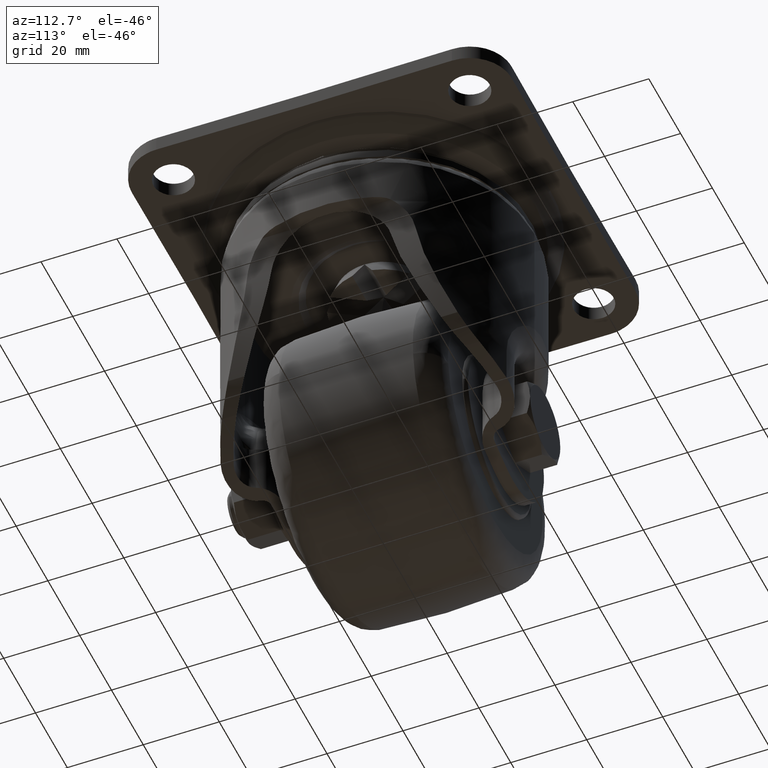
[diagram: clean part render]
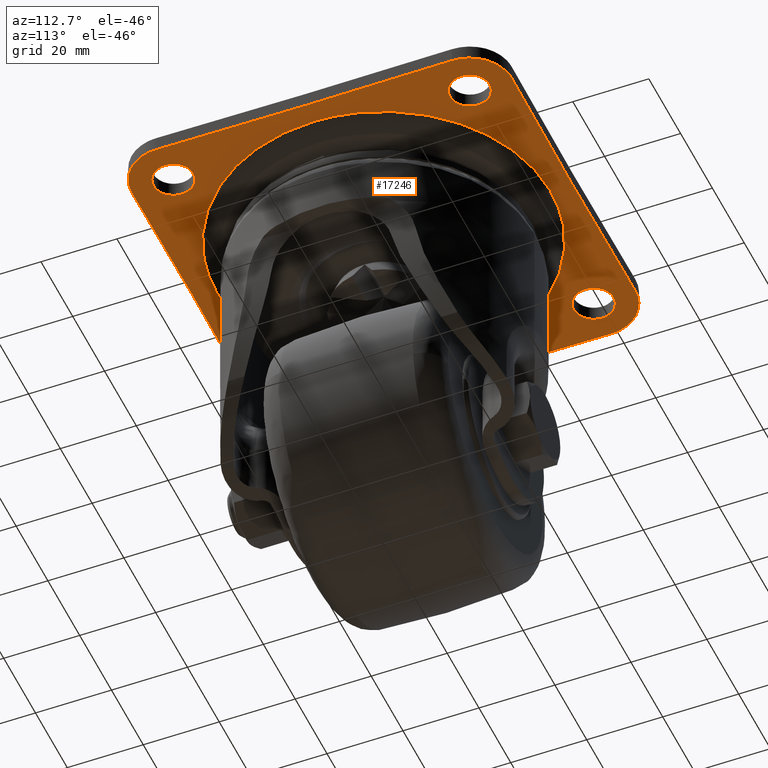
[diagram: same view with one face highlighted and labeled with its STEP entity id]
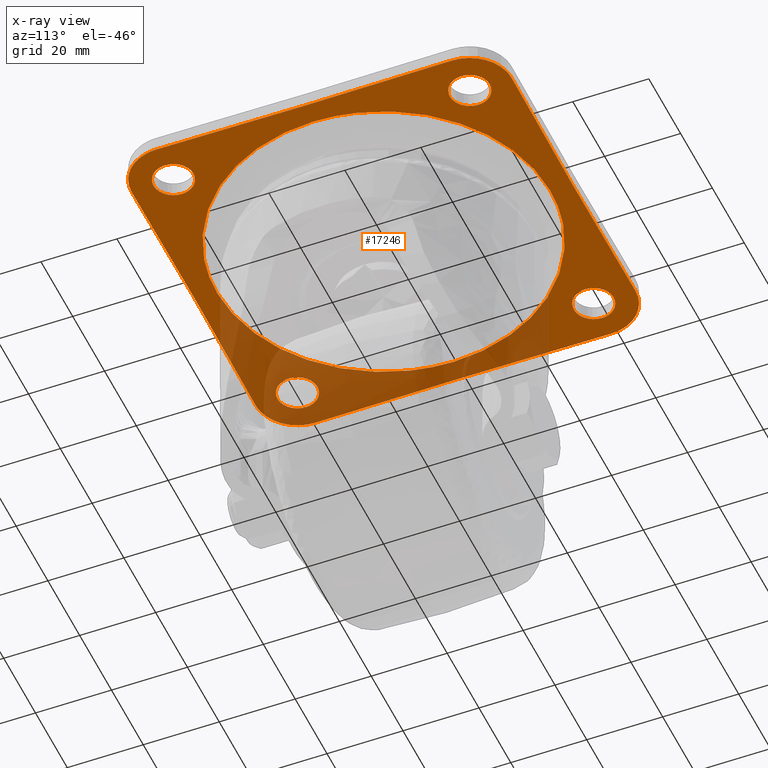
[diagram: x-ray of the same camera — body ghosted, the highlighted face saturated]
A machine part, auxiliary view. The second image highlights one B-rep face of the part: STEP entity #17246.
The next image is the same camera in x-ray: the body ghosted, the highlighted face saturated — about 30% of this face is hidden behind the body in this view.
In plain terms, the highlighted face is a freeform B-spline surface patch.
Its self-contained STEP definition (entity closure, byte-faithful):
#15383=CARTESIAN_POINT('',(-39.320512832876382,-44.240207691695332,-4.000005999999945));
#15384=VERTEX_POINT('',#15383);
#15385=CARTESIAN_POINT('',(-33.750008000000008,-39.0,-4.000005999999945));
#15386=VERTEX_POINT('',#15385);
#15387=CARTESIAN_POINT('',(-39.320512832876382,-44.240207691695332,-4.000005999999945));
#15388=CARTESIAN_POINT('',(-39.160410007477225,-44.250000000000000,-4.000005999999945));
#15389=CARTESIAN_POINT('',(-39.000008000000001,-44.250000000000000,-4.000005999999945));
#15390=CARTESIAN_POINT('',(-33.750008000000001,-44.250000000000007,-4.000005999999945));
#15391=CARTESIAN_POINT('',(-33.750008000000008,-39.0,-4.000005999999945));
#15399=(BOUNDED_CURVE()B_SPLINE_CURVE(2,(#15387,#15388,#15389,#15390,#15391),.UNSPECIFIED.,.F.,.U.)B_SPLINE_CURVE_WITH_KNOTS((3,2,3),(0.239332962231485,0.250000000000000,0.500000000000000),.UNSPECIFIED.)CURVE()GEOMETRIC_REPRESENTATION_ITEM()RATIONAL_B_SPLINE_CURVE((0.976072041650734,0.987502787891100,1.0,0.707106781186547,1.0))REPRESENTATION_ITEM(''));
#15400=EDGE_CURVE('',#15384,#15386,#15399,.T.);
#15441=CARTESIAN_POINT('',(-38.679503167123627,-33.759792308304668,-4.000005999999945));
#15442=VERTEX_POINT('',#15441);
#15448=CARTESIAN_POINT('',(-33.750008000000008,-39.0,-4.000005999999945));
#15449=CARTESIAN_POINT('',(-33.750008000000015,-34.061293149045717,-4.000005999999944));
#15450=CARTESIAN_POINT('',(-38.679503167123634,-33.759792308304675,-4.000005999999945));
#15458=(BOUNDED_CURVE()B_SPLINE_CURVE(2,(#15448,#15449,#15450),.UNSPECIFIED.,.F.,.U.)B_SPLINE_CURVE_WITH_KNOTS((3,3),(0.500000000000000,0.739332962231485),.UNSPECIFIED.)CURVE()GEOMETRIC_REPRESENTATION_ITEM()RATIONAL_B_SPLINE_CURVE((1.0,0.719603993295448,0.976072041650734))REPRESENTATION_ITEM(''));
#15459=EDGE_CURVE('',#15386,#15442,#15458,.T.);
#15482=CARTESIAN_POINT('',(-44.250008000000001,-39.0,-4.000005999999945));
#15483=VERTEX_POINT('',#15482);
#15484=CARTESIAN_POINT('',(-44.250008000000001,-39.0,-4.000005999999945));
#15485=CARTESIAN_POINT('',(-44.250008000000008,-43.938706850954283,-4.000005999999945));
#15486=CARTESIAN_POINT('',(-39.320512832876382,-44.240207691695332,-4.000005999999945));
#15494=(BOUNDED_CURVE()B_SPLINE_CURVE(2,(#15484,#15485,#15486),.UNSPECIFIED.,.F.,.U.)B_SPLINE_CURVE_WITH_KNOTS((3,3),(0.0,0.239332962231485),.UNSPECIFIED.)CURVE()GEOMETRIC_REPRESENTATION_ITEM()RATIONAL_B_SPLINE_CURVE((1.0,0.719603993295447,0.976072041650734))REPRESENTATION_ITEM(''));
#15495=EDGE_CURVE('',#15483,#15384,#15494,.T.);
#15497=CARTESIAN_POINT('',(-38.679503167123620,-33.759792308304682,-4.000005999999944));
#15498=CARTESIAN_POINT('',(-38.839605992522770,-33.750000000000000,-4.000005999999945));
#15499=CARTESIAN_POINT('',(-39.000008000000001,-33.750000000000000,-4.000005999999945));
#15500=CARTESIAN_POINT('',(-44.250007999999994,-33.750000000000007,-4.000005999999945));
#15501=CARTESIAN_POINT('',(-44.250008000000001,-39.0,-4.000005999999945));
#15509=(BOUNDED_CURVE()B_SPLINE_CURVE(2,(#15497,#15498,#15499,#15500,#15501),.UNSPECIFIED.,.F.,.U.)B_SPLINE_CURVE_WITH_KNOTS((3,2,3),(0.739332962231485,0.750000000000000,1.0),.UNSPECIFIED.)CURVE()GEOMETRIC_REPRESENTATION_ITEM()RATIONAL_B_SPLINE_CURVE((0.976072041650734,0.987502787891100,1.0,0.707106781186547,1.0))REPRESENTATION_ITEM(''));
#15510=EDGE_CURVE('',#15442,#15483,#15509,.T.);
#15565=CARTESIAN_POINT('',(-39.320512832876382,33.759792308304668,-4.000005999999945));
#15566=VERTEX_POINT('',#15565);
#15567=CARTESIAN_POINT('',(-33.750008000000008,39.0,-4.000005999999945));
#15568=VERTEX_POINT('',#15567);
#15569=CARTESIAN_POINT('',(-39.320512832876368,33.759792308304675,-4.000005999999944));
#15570=CARTESIAN_POINT('',(-39.160410007477225,33.750000000000000,-4.000005999999944));
#15571=CARTESIAN_POINT('',(-39.000008000000001,33.750000000000000,-4.000005999999945));
#15572=CARTESIAN_POINT('',(-33.750008000000001,33.750000000000007,-4.000005999999945));
#15573=CARTESIAN_POINT('',(-33.750008000000008,39.0,-4.000005999999945));
#15581=(BOUNDED_CURVE()B_SPLINE_CURVE(2,(#15569,#15570,#15571,#15572,#15573),.UNSPECIFIED.,.F.,.U.)B_SPLINE_CURVE_WITH_KNOTS((3,2,3),(0.239332962231485,0.250000000000000,0.500000000000000),.UNSPECIFIED.)CURVE()GEOMETRIC_REPRESENTATION_ITEM()RATIONAL_B_SPLINE_CURVE((0.976072041650734,0.987502787891100,1.0,0.707106781186547,1.0))REPRESENTATION_ITEM(''));
#15582=EDGE_CURVE('',#15566,#15568,#15581,.T.);
#15623=CARTESIAN_POINT('',(-38.679503167123627,44.240207691695332,-4.000005999999945));
#15624=VERTEX_POINT('',#15623);
#15630=CARTESIAN_POINT('',(-33.750008000000008,39.0,-4.000005999999945));
#15631=CARTESIAN_POINT('',(-33.750008000000015,43.938706850954276,-4.000005999999944));
#15632=CARTESIAN_POINT('',(-38.679503167123634,44.240207691695332,-4.000005999999945));
#15640=(BOUNDED_CURVE()B_SPLINE_CURVE(2,(#15630,#15631,#15632),.UNSPECIFIED.,.F.,.U.)B_SPLINE_CURVE_WITH_KNOTS((3,3),(0.500000000000000,0.739332962231485),.UNSPECIFIED.)CURVE()GEOMETRIC_REPRESENTATION_ITEM()RATIONAL_B_SPLINE_CURVE((1.0,0.719603993295448,0.976072041650734))REPRESENTATION_ITEM(''));
#15641=EDGE_CURVE('',#15568,#15624,#15640,.T.);
#15664=CARTESIAN_POINT('',(-44.250008000000001,39.0,-4.000005999999945));
#15665=VERTEX_POINT('',#15664);
#15666=CARTESIAN_POINT('',(-44.250008000000001,39.0,-4.000005999999945));
#15667=CARTESIAN_POINT('',(-44.250008000000008,34.061293149045710,-4.000005999999945));
#15668=CARTESIAN_POINT('',(-39.320512832876382,33.759792308304682,-4.000005999999945));
#15676=(BOUNDED_CURVE()B_SPLINE_CURVE(2,(#15666,#15667,#15668),.UNSPECIFIED.,.F.,.U.)B_SPLINE_CURVE_WITH_KNOTS((3,3),(0.0,0.239332962231485),.UNSPECIFIED.)CURVE()GEOMETRIC_REPRESENTATION_ITEM()RATIONAL_B_SPLINE_CURVE((1.0,0.719603993295447,0.976072041650734))REPRESENTATION_ITEM(''));
#15677=EDGE_CURVE('',#15665,#15566,#15676,.T.);
#15679=CARTESIAN_POINT('',(-38.679503167123620,44.240207691695332,-4.000005999999944));
#15680=CARTESIAN_POINT('',(-38.839605992522770,44.250000000000000,-4.000005999999945));
#15681=CARTESIAN_POINT('',(-39.000008000000001,44.250000000000000,-4.000005999999945));
#15682=CARTESIAN_POINT('',(-44.250007999999994,44.250000000000007,-4.000005999999945));
#15683=CARTESIAN_POINT('',(-44.250008000000001,39.0,-4.000005999999945));
#15691=(BOUNDED_CURVE()B_SPLINE_CURVE(2,(#15679,#15680,#15681,#15682,#15683),.UNSPECIFIED.,.F.,.U.)B_SPLINE_CURVE_WITH_KNOTS((3,2,3),(0.739332962231485,0.750000000000000,1.0),.UNSPECIFIED.)CURVE()GEOMETRIC_REPRESENTATION_ITEM()RATIONAL_B_SPLINE_CURVE((0.976072041650734,0.987502787891100,1.0,0.707106781186547,1.0))REPRESENTATION_ITEM(''));
#15692=EDGE_CURVE('',#15624,#15665,#15691,.T.);
#15747=CARTESIAN_POINT('',(38.679503167123627,33.759792308304668,-4.000005999999945));
#15748=VERTEX_POINT('',#15747);
#15749=CARTESIAN_POINT('',(44.250008000000001,39.0,-4.000005999999945));
#15750=VERTEX_POINT('',#15749);
#15751=CARTESIAN_POINT('',(38.679503167123627,33.759792308304682,-4.000005999999944));
#15752=CARTESIAN_POINT('',(38.839605992522770,33.750000000000000,-4.000005999999944));
#15753=CARTESIAN_POINT('',(39.000008000000001,33.750000000000000,-4.000005999999945));
#15754=CARTESIAN_POINT('',(44.250007999999994,33.750000000000007,-4.000005999999945));
#15755=CARTESIAN_POINT('',(44.250008000000001,39.0,-4.000005999999945));
#15763=(BOUNDED_CURVE()B_SPLINE_CURVE(2,(#15751,#15752,#15753,#15754,#15755),.UNSPECIFIED.,.F.,.U.)B_SPLINE_CURVE_WITH_KNOTS((3,2,3),(0.239332962231485,0.250000000000000,0.500000000000000),.UNSPECIFIED.)CURVE()GEOMETRIC_REPRESENTATION_ITEM()RATIONAL_B_SPLINE_CURVE((0.976072041650734,0.987502787891100,1.0,0.707106781186547,1.0))REPRESENTATION_ITEM(''));
#15764=EDGE_CURVE('',#15748,#15750,#15763,.T.);
#15805=CARTESIAN_POINT('',(39.320512832876382,44.240207691695332,-4.000005999999945));
#15806=VERTEX_POINT('',#15805);
#15812=CARTESIAN_POINT('',(44.250008000000001,39.0,-4.000005999999945));
#15813=CARTESIAN_POINT('',(44.250008000000001,43.938706850954269,-4.000005999999945));
#15814=CARTESIAN_POINT('',(39.320512832876375,44.240207691695332,-4.000005999999944));
#15822=(BOUNDED_CURVE()B_SPLINE_CURVE(2,(#15812,#15813,#15814),.UNSPECIFIED.,.F.,.U.)B_SPLINE_CURVE_WITH_KNOTS((3,3),(0.500000000000000,0.739332962231485),.UNSPECIFIED.)CURVE()GEOMETRIC_REPRESENTATION_ITEM()RATIONAL_B_SPLINE_CURVE((1.0,0.719603993295448,0.976072041650734))REPRESENTATION_ITEM(''));
#15823=EDGE_CURVE('',#15750,#15806,#15822,.T.);
#15846=CARTESIAN_POINT('',(33.750008000000008,39.0,-4.000005999999945));
#15847=VERTEX_POINT('',#15846);
#15848=CARTESIAN_POINT('',(33.750008000000008,39.0,-4.000005999999945));
#15849=CARTESIAN_POINT('',(33.750008000000001,34.061293149045724,-4.000005999999944));
#15850=CARTESIAN_POINT('',(38.679503167123634,33.759792308304675,-4.000005999999945));
#15858=(BOUNDED_CURVE()B_SPLINE_CURVE(2,(#15848,#15849,#15850),.UNSPECIFIED.,.F.,.U.)B_SPLINE_CURVE_WITH_KNOTS((3,3),(0.0,0.239332962231485),.UNSPECIFIED.)CURVE()GEOMETRIC_REPRESENTATION_ITEM()RATIONAL_B_SPLINE_CURVE((1.0,0.719603993295448,0.976072041650734))REPRESENTATION_ITEM(''));
#15859=EDGE_CURVE('',#15847,#15748,#15858,.T.);
#15861=CARTESIAN_POINT('',(39.320512832876368,44.240207691695318,-4.000005999999944));
#15862=CARTESIAN_POINT('',(39.160410007477218,44.249999999999993,-4.000005999999944));
#15863=CARTESIAN_POINT('',(39.000008000000001,44.250000000000000,-4.000005999999945));
#15864=CARTESIAN_POINT('',(33.750008000000001,44.250000000000007,-4.000005999999945));
#15865=CARTESIAN_POINT('',(33.750008000000008,39.0,-4.000005999999945));
#15873=(BOUNDED_CURVE()B_SPLINE_CURVE(2,(#15861,#15862,#15863,#15864,#15865),.UNSPECIFIED.,.F.,.U.)B_SPLINE_CURVE_WITH_KNOTS((3,2,3),(0.739332962231485,0.750000000000000,1.0),.UNSPECIFIED.)CURVE()GEOMETRIC_REPRESENTATION_ITEM()RATIONAL_B_SPLINE_CURVE((0.976072041650735,0.987502787891100,1.0,0.707106781186547,1.0))REPRESENTATION_ITEM(''));
#15874=EDGE_CURVE('',#15806,#15847,#15873,.T.);
#15929=CARTESIAN_POINT('',(38.679503167123627,-44.240207691695332,-4.000005999999945));
#15930=VERTEX_POINT('',#15929);
#15931=CARTESIAN_POINT('',(44.250008000000001,-39.0,-4.000005999999945));
#15932=VERTEX_POINT('',#15931);
#15933=CARTESIAN_POINT('',(38.679503167123634,-44.240207691695332,-4.000005999999945));
#15934=CARTESIAN_POINT('',(38.839605992522777,-44.250000000000000,-4.000005999999945));
#15935=CARTESIAN_POINT('',(39.000008000000001,-44.250000000000000,-4.000005999999945));
#15936=CARTESIAN_POINT('',(44.250007999999994,-44.250000000000007,-4.000005999999945));
#15937=CARTESIAN_POINT('',(44.250008000000001,-39.0,-4.000005999999945));
#15945=(BOUNDED_CURVE()B_SPLINE_CURVE(2,(#15933,#15934,#15935,#15936,#15937),.UNSPECIFIED.,.F.,.U.)B_SPLINE_CURVE_WITH_KNOTS((3,2,3),(0.239332962231485,0.250000000000000,0.500000000000000),.UNSPECIFIED.)CURVE()GEOMETRIC_REPRESENTATION_ITEM()RATIONAL_B_SPLINE_CURVE((0.976072041650734,0.987502787891100,1.0,0.707106781186547,1.0))REPRESENTATION_ITEM(''));
#15946=EDGE_CURVE('',#15930,#15932,#15945,.T.);
#15987=CARTESIAN_POINT('',(39.320512832876382,-33.759792308304668,-4.000005999999945));
#15988=VERTEX_POINT('',#15987);
#15994=CARTESIAN_POINT('',(44.250008000000001,-39.0,-4.000005999999945));
#15995=CARTESIAN_POINT('',(44.250008000000001,-34.061293149045717,-4.000005999999945));
#15996=CARTESIAN_POINT('',(39.320512832876375,-33.759792308304675,-4.000005999999944));
#16004=(BOUNDED_CURVE()B_SPLINE_CURVE(2,(#15994,#15995,#15996),.UNSPECIFIED.,.F.,.U.)B_SPLINE_CURVE_WITH_KNOTS((3,3),(0.500000000000000,0.739332962231485),.UNSPECIFIED.)CURVE()GEOMETRIC_REPRESENTATION_ITEM()RATIONAL_B_SPLINE_CURVE((1.0,0.719603993295448,0.976072041650734))REPRESENTATION_ITEM(''));
#16005=EDGE_CURVE('',#15932,#15988,#16004,.T.);
#16028=CARTESIAN_POINT('',(33.750008000000008,-39.0,-4.000005999999945));
#16029=VERTEX_POINT('',#16028);
#16030=CARTESIAN_POINT('',(33.750008000000008,-39.0,-4.000005999999945));
#16031=CARTESIAN_POINT('',(33.750008000000001,-43.938706850954283,-4.000005999999944));
#16032=CARTESIAN_POINT('',(38.679503167123634,-44.240207691695332,-4.000005999999945));
#16040=(BOUNDED_CURVE()B_SPLINE_CURVE(2,(#16030,#16031,#16032),.UNSPECIFIED.,.F.,.U.)B_SPLINE_CURVE_WITH_KNOTS((3,3),(0.0,0.239332962231485),.UNSPECIFIED.)CURVE()GEOMETRIC_REPRESENTATION_ITEM()RATIONAL_B_SPLINE_CURVE((1.0,0.719603993295448,0.976072041650734))REPRESENTATION_ITEM(''));
#16041=EDGE_CURVE('',#16029,#15930,#16040,.T.);
#16043=CARTESIAN_POINT('',(39.320512832876368,-33.759792308304675,-4.000005999999944));
#16044=CARTESIAN_POINT('',(39.160410007477218,-33.749999999999993,-4.000005999999944));
#16045=CARTESIAN_POINT('',(39.000008000000001,-33.750000000000000,-4.000005999999945));
#16046=CARTESIAN_POINT('',(33.750008000000001,-33.750000000000007,-4.000005999999945));
#16047=CARTESIAN_POINT('',(33.750008000000008,-39.0,-4.000005999999945));
#16055=(BOUNDED_CURVE()B_SPLINE_CURVE(2,(#16043,#16044,#16045,#16046,#16047),.UNSPECIFIED.,.F.,.U.)B_SPLINE_CURVE_WITH_KNOTS((3,2,3),(0.739332962231485,0.750000000000000,1.0),.UNSPECIFIED.)CURVE()GEOMETRIC_REPRESENTATION_ITEM()RATIONAL_B_SPLINE_CURVE((0.976072041650735,0.987502787891100,1.0,0.707106781186547,1.0))REPRESENTATION_ITEM(''));
#16056=EDGE_CURVE('',#15988,#16029,#16055,.T.);
#16838=CARTESIAN_POINT('',(49.999086581534897,-38.859138427465403,-4.000005999999945));
#16839=VERTEX_POINT('',#16838);
#16845=CARTESIAN_POINT('',(49.999088974296697,38.859327055020650,-4.000005999999945));
#16846=VERTEX_POINT('',#16845);
#16847=CARTESIAN_POINT('',(49.999088974296697,38.859327055020650,-4.000005999999945));
#16848=CARTESIAN_POINT('',(49.500875653249565,0.000094329118508,-4.000005999999946));
#16849=CARTESIAN_POINT('',(49.999086581514973,-38.859138427463719,-4.000005999999945));
#16857=(BOUNDED_CURVE()B_SPLINE_CURVE(2,(#16847,#16848,#16849),.UNSPECIFIED.,.F.,.U.)CURVE()GEOMETRIC_REPRESENTATION_ITEM()QUASI_UNIFORM_CURVE()RATIONAL_B_SPLINE_CURVE((1.0,0.999917821802801,1.0))REPRESENTATION_ITEM(''));
#16858=EDGE_CURVE('',#16846,#16839,#16857,.T.);
#16883=CARTESIAN_POINT('',(38.859112224408648,-49.999107261167403,-4.000005999999945));
#16884=VERTEX_POINT('',#16883);
#16890=CARTESIAN_POINT('',(38.859112224408648,-49.999107261167403,-4.000005999999945));
#16891=CARTESIAN_POINT('',(39.590738382218461,-50.008575948493139,-4.000005999999947));
#16892=CARTESIAN_POINT('',(40.872692545834042,-49.896660290224617,-4.000005999999942));
#16893=CARTESIAN_POINT('',(42.910510485957239,-49.351257144265709,-4.000005999999955));
#16894=CARTESIAN_POINT('',(44.652025024700997,-48.512897578222557,-4.000005999999927));
#16895=CARTESIAN_POINT('',(46.275569401386988,-47.314705198689623,-4.000005999999991));
#16896=CARTESIAN_POINT('',(47.397400085875177,-46.164547972837262,-4.000005999999869));
#16897=CARTESIAN_POINT('',(48.449094668650503,-44.720640071935847,-4.000005999999935));
#16898=CARTESIAN_POINT('',(49.182740644349778,-43.289145368793733,-4.000006000000000));
#16899=CARTESIAN_POINT('',(49.842686703560219,-41.239177745577422,-4.000005999999896));
#16900=CARTESIAN_POINT('',(50.011696119351740,-39.819436574215878,-4.000005999999982));
#16901=CARTESIAN_POINT('',(49.999086581534897,-38.859138427465403,-4.000005999999945));
#16902=B_SPLINE_CURVE_WITH_KNOTS('',3,(#16890,#16891,#16892,#16893,#16894,#16895,#16896,#16897,#16898,#16899,#16900,#16901),.UNSPECIFIED.,.F.,.U.,(4,1,1,1,1,1,1,1,1,4),(0.000000041236369,2.195061499117408,3.841396808126236,6.310878562661907,7.957221728796965,9.877852845926746,11.112611838742470,13.307715126677600,14.679660456290399,17.560693995647881),.UNSPECIFIED.);
#16903=EDGE_CURVE('',#16884,#16839,#16902,.T.);
#16924=CARTESIAN_POINT('',(-38.859143584878602,-49.999107511081000,-4.000005999999945));
#16925=VERTEX_POINT('',#16924);
#16931=CARTESIAN_POINT('',(38.859112224408648,-49.999107261167403,-4.000005999999945));
#16932=CARTESIAN_POINT('',(-0.000015681835654,-49.500878411463674,-4.000005999999946));
#16933=CARTESIAN_POINT('',(-38.859143584898099,-49.999107509454802,-4.000005999999945));
#16941=(BOUNDED_CURVE()B_SPLINE_CURVE(2,(#16931,#16932,#16933),.UNSPECIFIED.,.F.,.U.)CURVE()GEOMETRIC_REPRESENTATION_ITEM()QUASI_UNIFORM_CURVE()RATIONAL_B_SPLINE_CURVE((1.0,0.999917815801585,1.0))REPRESENTATION_ITEM(''));
#16942=EDGE_CURVE('',#16884,#16925,#16941,.T.);
#16963=CARTESIAN_POINT('',(-49.999113580391203,-38.859138340362598,-4.000005999999945));
#16964=VERTEX_POINT('',#16963);
#16970=CARTESIAN_POINT('',(-49.999113580391203,-38.859138340362598,-4.000005999999945));
#16971=CARTESIAN_POINT('',(-50.012413211734767,-39.865177761765722,-4.000005999999945));
#16972=CARTESIAN_POINT('',(-49.828549788335032,-41.330821378416807,-4.000005999999940));
#16973=CARTESIAN_POINT('',(-49.186734360137017,-43.242010174183761,-4.000005999999954));
#16974=CARTESIAN_POINT('',(-48.370711639888299,-44.884900704966697,-4.000005999999918));
#16975=CARTESIAN_POINT('',(-47.120361187444423,-46.535667502377258,-4.000005999999992));
#16976=CARTESIAN_POINT('',(-45.423572526004939,-48.014273517848672,-4.000005999999918));
#16977=CARTESIAN_POINT('',(-43.473188314625268,-49.140118325653823,-4.000005999999960));
#16978=CARTESIAN_POINT('',(-41.239099849840883,-49.859273928381192,-4.000005999999940));
#16979=CARTESIAN_POINT('',(-39.636500571237818,-50.009188355071842,-4.000005999999948));
#16980=CARTESIAN_POINT('',(-38.859143584878602,-49.999107511081000,-4.000005999999945));
#16981=B_SPLINE_CURVE_WITH_KNOTS('',3,(#16970,#16971,#16972,#16973,#16974,#16975,#16976,#16977,#16978,#16979,#16980),.UNSPECIFIED.,.F.,.U.,(4,1,1,1,1,1,1,1,4),(0.000000041241520,3.018243525445113,4.390174081809194,6.036500062118861,8.505974303341635,10.563839516043750,12.758936492793080,15.228427359681000,17.560691883731032),.UNSPECIFIED.);
#16982=EDGE_CURVE('',#16964,#16925,#16981,.T.);
#17003=CARTESIAN_POINT('',(-49.999113600735193,38.859141825077252,-4.000005999999945));
#17004=VERTEX_POINT('',#17003);
#17010=CARTESIAN_POINT('',(-49.999113580391203,-38.859138340362598,-4.000005999999945));
#17011=CARTESIAN_POINT('',(-49.500887203865588,0.000001742465876,-4.000005999999945));
#17012=CARTESIAN_POINT('',(-49.999113599427332,38.859141825093459,-4.000005999999945));
#17020=(BOUNDED_CURVE()B_SPLINE_CURVE(2,(#17010,#17011,#17012),.UNSPECIFIED.,.F.,.U.)CURVE()GEOMETRIC_REPRESENTATION_ITEM()QUASI_UNIFORM_CURVE()RATIONAL_B_SPLINE_CURVE((1.0,0.999917816706712,1.0))REPRESENTATION_ITEM(''));
#17021=EDGE_CURVE('',#16964,#17004,#17020,.T.);
#17042=CARTESIAN_POINT('',(-38.859172592322402,49.999087381304903,-4.000005999999945));
#17043=VERTEX_POINT('',#17042);
#17049=CARTESIAN_POINT('',(-38.859172592322402,49.999087381304903,-4.000005999999945));
#17050=CARTESIAN_POINT('',(-39.865215246077952,50.012394350081053,-4.000005999999941));
#17051=CARTESIAN_POINT('',(-41.330829807296517,49.828485654199881,-4.000005999999963));
#17052=CARTESIAN_POINT('',(-43.415831220775893,49.128461967387103,-4.000005999999901));
#17053=CARTESIAN_POINT('',(-45.041250099649147,48.269692176618634,-4.000006000000011));
#17054=CARTESIAN_POINT('',(-46.548660317021707,47.067628872331120,-4.000005999999901));
#17055=CARTESIAN_POINT('',(-47.810214679658671,45.673475423619102,-4.000005999999982));
#17056=CARTESIAN_POINT('',(-48.821938831064870,44.085159640201837,-4.000005999999918));
#17057=CARTESIAN_POINT('',(-49.461787123870771,42.511784502138852,-4.000005999999922));
#17058=CARTESIAN_POINT('',(-49.901995124585802,40.781168723422383,-4.000005999999981));
#17059=CARTESIAN_POINT('',(-50.009227833379683,39.636507151425860,-4.000005999999939));
#17060=CARTESIAN_POINT('',(-49.999113600735193,38.859141825077252,-4.000005999999945));
#17061=B_SPLINE_CURVE_WITH_KNOTS('',3,(#17049,#17050,#17051,#17052,#17053,#17054,#17055,#17056,#17057,#17058,#17059,#17060),.UNSPECIFIED.,.F.,.U.,(4,1,1,1,1,1,1,1,1,4),(0.000000041193037,3.018236197495593,4.390163422996753,6.585253097896390,8.505953651905578,10.152218443306090,12.210133916401951,14.130839992902770,15.228390387014770,17.560649248636580),.UNSPECIFIED.);
#17062=EDGE_CURVE('',#17043,#17004,#17061,.T.);
#17083=CARTESIAN_POINT('',(38.859326373033753,49.999089506773103,-4.000005999999945));
#17084=VERTEX_POINT('',#17083);
#17090=CARTESIAN_POINT('',(-38.859172592322402,49.999087381304903,-4.000005999999945));
#17091=CARTESIAN_POINT('',(0.000076903978388,49.500875449576050,-4.000005999999946));
#17092=CARTESIAN_POINT('',(38.859326373034172,49.999089506772791,-4.000005999999945));
#17100=(BOUNDED_CURVE()B_SPLINE_CURVE(2,(#17090,#17091,#17092),.UNSPECIFIED.,.F.,.U.)CURVE()GEOMETRIC_REPRESENTATION_ITEM()QUASI_UNIFORM_CURVE()RATIONAL_B_SPLINE_CURVE((1.0,0.999917821586693,1.0))REPRESENTATION_ITEM(''));
#17101=EDGE_CURVE('',#17043,#17084,#17100,.T.);
#17123=CARTESIAN_POINT('',(49.999088974296697,38.859327055020650,-4.000005999999945));
#17124=CARTESIAN_POINT('',(50.012386551862292,39.865347634288113,-4.000005999999932));
#17125=CARTESIAN_POINT('',(49.828527187511412,41.330964121087050,-4.000005999999958));
#17126=CARTESIAN_POINT('',(49.186724770621268,43.242117214715570,-4.000005999999934));
#17127=CARTESIAN_POINT('',(48.370713047412409,44.884971698591087,-4.000005999999953));
#17128=CARTESIAN_POINT('',(47.120390175544017,46.535711594857453,-4.000005999999926));
#17129=CARTESIAN_POINT('',(45.354396821390402,48.074704588720557,-4.000005999999962));
#17130=CARTESIAN_POINT('',(43.548114910483513,49.087400772007257,-4.000005999999938));
#17131=CARTESIAN_POINT('',(41.330936572003402,49.831810379184773,-4.000005999999952));
#17132=CARTESIAN_POINT('',(39.819600798433470,50.011705220778573,-4.000005999999965));
#17133=CARTESIAN_POINT('',(38.859326373033753,49.999089506773103,-4.000005999999945));
#17134=B_SPLINE_CURVE_WITH_KNOTS('',3,(#17123,#17124,#17125,#17126,#17127,#17128,#17129,#17130,#17131,#17132,#17133),.UNSPECIFIED.,.F.,.U.,(4,1,1,1,1,1,1,1,4),(0.000000040892363,3.018187092819023,4.390091998124733,6.036387196978076,8.505815266299655,10.563642003012211,13.033080650570620,14.679384224083311,17.560363550113639),.UNSPECIFIED.);
#17135=EDGE_CURVE('',#16846,#17084,#17134,.T.);
#17141=CARTESIAN_POINT('',(-54.994023625542113,54.993999253999000,-4.000005999999929));
#17142=CARTESIAN_POINT('',(54.994001681264429,54.993999253999000,-4.000005999999929));
#17143=CARTESIAN_POINT('',(-54.994023625542113,-54.994019940467560,-4.000005999999929));
#17144=CARTESIAN_POINT('',(54.994001681264429,-54.994019940467560,-4.000005999999929));
#17145=B_SPLINE_SURFACE_WITH_KNOTS('',1,1,((#17141,#17143),(#17142,#17144)),.UNSPECIFIED.,.F.,.F.,.U.,(2,2),(2,2),(0.0,109.988025306806610),(0.0,109.988019194466600),.UNSPECIFIED.);
#17146=ORIENTED_EDGE('',*,*,#17135,.F.);
#17147=ORIENTED_EDGE('',*,*,#16858,.T.);
#17148=ORIENTED_EDGE('',*,*,#16903,.F.);
#17149=ORIENTED_EDGE('',*,*,#16942,.T.);
#17150=ORIENTED_EDGE('',*,*,#16982,.F.);
#17151=ORIENTED_EDGE('',*,*,#17021,.T.);
#17152=ORIENTED_EDGE('',*,*,#17062,.F.);
#17153=ORIENTED_EDGE('',*,*,#17101,.T.);
#17154=EDGE_LOOP('',(#17146,#17147,#17148,#17149,#17150,#17151,#17152,#17153));
#17155=FACE_OUTER_BOUND('',#17154,.T.);
#17156=ORIENTED_EDGE('',*,*,#16005,.T.);
#17157=ORIENTED_EDGE('',*,*,#16056,.T.);
#17158=ORIENTED_EDGE('',*,*,#16041,.T.);
#17159=ORIENTED_EDGE('',*,*,#15946,.T.);
#17160=EDGE_LOOP('',(#17156,#17157,#17158,#17159));
#17161=FACE_BOUND('',#17160,.T.);
#17162=ORIENTED_EDGE('',*,*,#15823,.T.);
#17163=ORIENTED_EDGE('',*,*,#15874,.T.);
#17164=ORIENTED_EDGE('',*,*,#15859,.T.);
#17165=ORIENTED_EDGE('',*,*,#15764,.T.);
#17166=EDGE_LOOP('',(#17162,#17163,#17164,#17165));
#17167=FACE_BOUND('',#17166,.T.);
#17168=ORIENTED_EDGE('',*,*,#15641,.T.);
#17169=ORIENTED_EDGE('',*,*,#15692,.T.);
#17170=ORIENTED_EDGE('',*,*,#15677,.T.);
#17171=ORIENTED_EDGE('',*,*,#15582,.T.);
#17172=EDGE_LOOP('',(#17168,#17169,#17170,#17171));
#17173=FACE_BOUND('',#17172,.T.);
#17174=ORIENTED_EDGE('',*,*,#15459,.T.);
#17175=ORIENTED_EDGE('',*,*,#15510,.T.);
#17176=ORIENTED_EDGE('',*,*,#15495,.T.);
#17177=ORIENTED_EDGE('',*,*,#15400,.T.);
#17178=EDGE_LOOP('',(#17174,#17175,#17176,#17177));
#17179=FACE_BOUND('',#17178,.T.);
#17180=CARTESIAN_POINT('',(-43.999565000000104,0.0,-4.000005999999929));
#17181=VERTEX_POINT('',#17180);
#17182=CARTESIAN_POINT('',(0.383963766014009,43.997889631402728,-4.000005999981134));
#17183=VERTEX_POINT('',#17182);
#17184=CARTESIAN_POINT('',(-43.999565000000104,0.0,-4.000005999999929));
#17185=CARTESIAN_POINT('',(-43.999565000000032,43.999565000008388,-4.000005999990614));
#17186=CARTESIAN_POINT('',(1.358536E-013,43.999565000016773,-4.000005999981216));
#17187=CARTESIAN_POINT('',(0.191985538117582,43.999565000016808,-4.000005999981175));
#17188=CARTESIAN_POINT('',(0.383963766014009,43.997889631402728,-4.000005999981134));
#17196=(BOUNDED_CURVE()B_SPLINE_CURVE(2,(#17184,#17185,#17186,#17187,#17188),.UNSPECIFIED.,.F.,.U.)B_SPLINE_CURVE_WITH_KNOTS((3,2,3),(0.0,0.250000000000000,0.251539894335501),.UNSPECIFIED.)CURVE()GEOMETRIC_REPRESENTATION_ITEM()RATIONAL_B_SPLINE_CURVE((1.0,0.707106781186548,1.0,0.998195901565770,0.996414028099216))REPRESENTATION_ITEM(''));
#17197=EDGE_CURVE('',#17181,#17183,#17196,.T.);
#17198=ORIENTED_EDGE('',*,*,#17197,.F.);
#17199=CARTESIAN_POINT('',(-0.383963766014014,-43.997889631402728,-4.000005999981134));
#17200=VERTEX_POINT('',#17199);
#17201=CARTESIAN_POINT('',(-0.383963766014014,-43.997889631402728,-4.000005999981134));
#17202=CARTESIAN_POINT('',(-43.999565000000175,-43.617262045683667,-4.000005999990533));
#17203=CARTESIAN_POINT('',(-43.999565000000104,0.0,-4.000005999999929));
#17211=(BOUNDED_CURVE()B_SPLINE_CURVE(2,(#17201,#17202,#17203),.UNSPECIFIED.,.F.,.U.)B_SPLINE_CURVE_WITH_KNOTS((3,3),(0.751539894335501,1.0),.UNSPECIFIED.)CURVE()GEOMETRIC_REPRESENTATION_ITEM()RATIONAL_B_SPLINE_CURVE((0.996414028099217,0.708910879620777,1.0))REPRESENTATION_ITEM(''));
#17212=EDGE_CURVE('',#17200,#17181,#17211,.T.);
#17213=ORIENTED_EDGE('',*,*,#17212,.F.);
#17214=CARTESIAN_POINT('',(43.999565000000104,0.0,-4.000005999999929));
#17215=VERTEX_POINT('',#17214);
#17216=CARTESIAN_POINT('',(43.999565000000104,0.0,-4.000005999999929));
#17217=CARTESIAN_POINT('',(43.999565000000032,-43.999565000008388,-4.000005999990614));
#17218=CARTESIAN_POINT('',(-1.549770E-013,-43.999565000016773,-4.000005999981216));
#17219=CARTESIAN_POINT('',(-0.191985538117594,-43.999565000016815,-4.000005999981175));
#17220=CARTESIAN_POINT('',(-0.383963766014014,-43.997889631402728,-4.000005999981134));
#17228=(BOUNDED_CURVE()B_SPLINE_CURVE(2,(#17216,#17217,#17218,#17219,#17220),.UNSPECIFIED.,.F.,.U.)B_SPLINE_CURVE_WITH_KNOTS((3,2,3),(0.500000000000000,0.750000000000000,0.751539894335501),.UNSPECIFIED.)CURVE()GEOMETRIC_REPRESENTATION_ITEM()RATIONAL_B_SPLINE_CURVE((1.0,0.707106781186548,1.0,0.998195901565770,0.996414028099217))REPRESENTATION_ITEM(''));
#17229=EDGE_CURVE('',#17215,#17200,#17228,.T.);
#17230=ORIENTED_EDGE('',*,*,#17229,.F.);
#17231=CARTESIAN_POINT('',(0.383963766014009,43.997889631402728,-4.000005999981134));
#17232=CARTESIAN_POINT('',(43.999565000000160,43.617262045683646,-4.000005999990532));
#17233=CARTESIAN_POINT('',(43.999565000000104,0.0,-4.000005999999929));
#17241=(BOUNDED_CURVE()B_SPLINE_CURVE(2,(#17231,#17232,#17233),.UNSPECIFIED.,.F.,.U.)B_SPLINE_CURVE_WITH_KNOTS((3,3),(0.251539894335501,0.500000000000000),.UNSPECIFIED.)CURVE()GEOMETRIC_REPRESENTATION_ITEM()RATIONAL_B_SPLINE_CURVE((0.996414028099216,0.708910879620778,1.0))REPRESENTATION_ITEM(''));
#17242=EDGE_CURVE('',#17183,#17215,#17241,.T.);
#17243=ORIENTED_EDGE('',*,*,#17242,.F.);
#17244=EDGE_LOOP('',(#17198,#17213,#17230,#17243));
#17245=FACE_BOUND('',#17244,.T.);
#17246=ADVANCED_FACE('',(#17155,#17161,#17167,#17173,#17179,#17245),#17145,.T.);